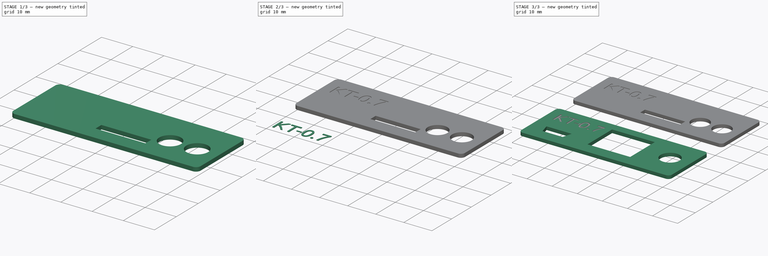
[diagram: build sequence overview — one tinted view per stage of 3, left to right]
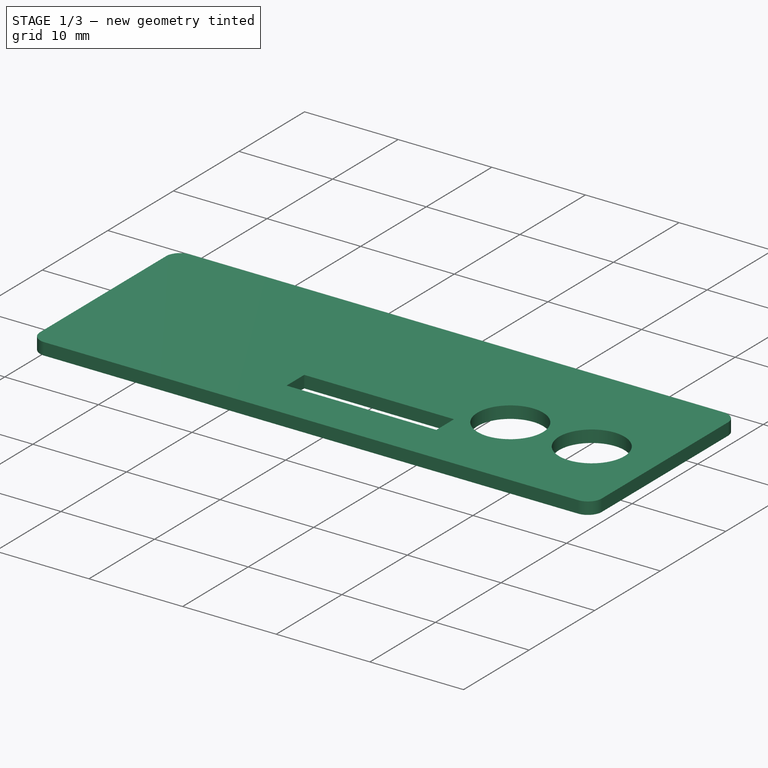
[diagram: stage 1 of 3 — iso view after this stage's code; geometry added in this stage tinted green]
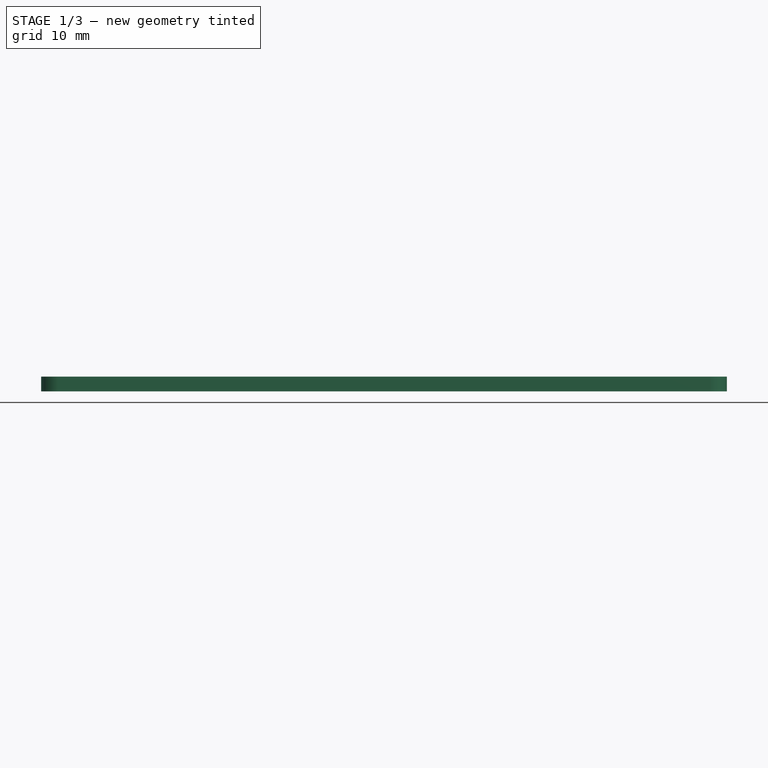
[diagram: stage 1 of 3 — front view after this stage's code; geometry added in this stage tinted green]
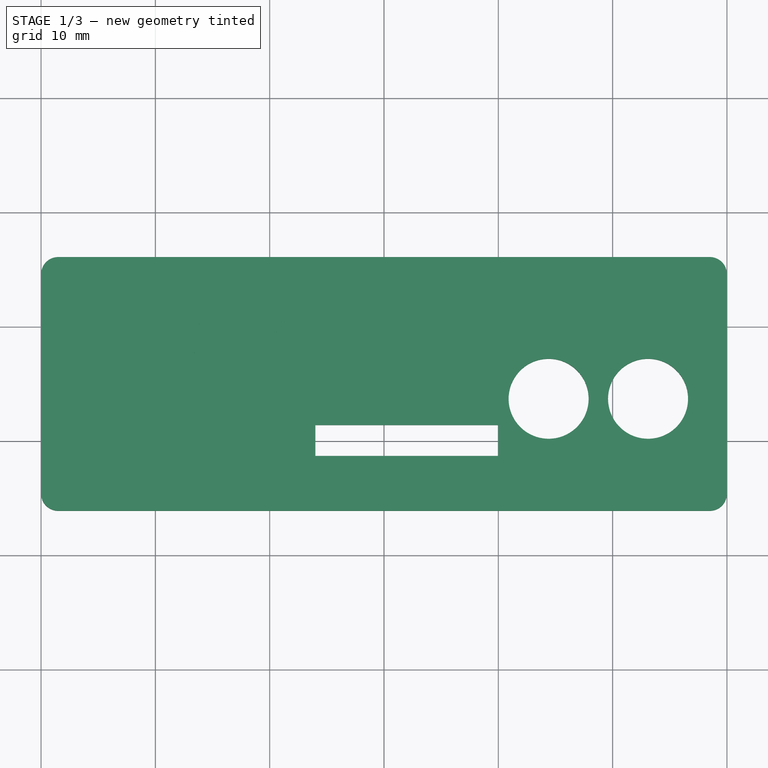
[diagram: stage 1 of 3 — top view after this stage's code; geometry added in this stage tinted green]
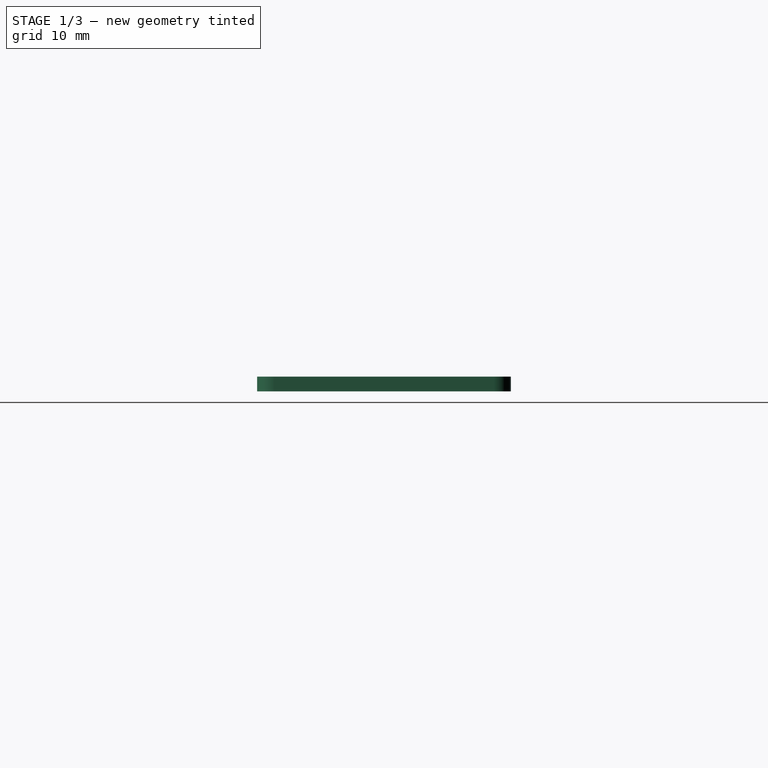
[diagram: stage 1 of 3 — right view after this stage's code; geometry added in this stage tinted green]
FCSTD DOCUMENT  (FreeCAD 0.16R)
Label: sideplates-0.7
License: CreativeCommons Attribution-ShareAlike
LicenseURL: http://creativecommons.org/licenses/by-sa/4.0/
objects: Sketcher::SketchObject×2, PartDesign::Pad×2, Part::Part2DObjectPython×2, Part::Extrusion×2, Part::Cut×2
note: 12 computed .brp shape members not serialized (recipe doc carries the construction recipe); baked Part::Feature solids carry a one-line shape summary decoded from their .brp

FEATURE [Sketcher::SketchObject] Sketch  label="Front Plate"
  Placement = pos=(0,15,0) rot=(0,1,0;3.14159rad)
  sketch-geometry (15):
    g0: LineSegment StartX=-28.5 StartY=11.1 StartZ=0 EndX=28.5 EndY=11.1 EndZ=0
    g1: LineSegment StartX=30 StartY=9.6 StartZ=0 EndX=30 EndY=-9.6 EndZ=0
    g2: LineSegment StartX=28.5 StartY=-11.1 StartZ=0 EndX=-28.5 EndY=-11.1 EndZ=0
    g3: LineSegment StartX=-30 StartY=-9.6 StartZ=0 EndX=-30 EndY=9.6 EndZ=0
    g4: ArcOfCircle CenterX=-28.5 CenterY=9.6 CenterZ=0 NormalX=0 NormalY=0 NormalZ=1 Radius=1.5 StartAngle=1.5708 EndAngle=3.14159
    g5: ArcOfCircle CenterX=28.5 CenterY=9.6 CenterZ=0 NormalX=0 NormalY=0 NormalZ=1 Radius=1.5 StartAngle=0 EndAngle=1.5708
    g6: ArcOfCircle CenterX=28.5 CenterY=-9.6 CenterZ=0 NormalX=0 NormalY=0 NormalZ=1 Radius=1.5 StartAngle=4.71239 EndAngle=6.28319
    g7: ArcOfCircle CenterX=-28.5 CenterY=-9.6 CenterZ=0 NormalX=0 NormalY=0 NormalZ=1 Radius=1.5 StartAngle=3.14159 EndAngle=4.71239
    g8: LineSegment StartX=-10 StartY=-6.3 StartZ=0 EndX=6 EndY=-6.3 EndZ=0
    g9: LineSegment StartX=6 StartY=-6.3 StartZ=0 EndX=6 EndY=-3.6 EndZ=0
    g10: LineSegment StartX=6 StartY=-3.6 StartZ=0 EndX=-10 EndY=-3.6 EndZ=0
    g11: LineSegment StartX=-10 StartY=-3.6 StartZ=0 EndX=-10 EndY=-6.3 EndZ=0
    g12: Circle CenterX=-23.1 CenterY=-1.3 CenterZ=0 NormalX=0 NormalY=0 NormalZ=1 Radius=3.5
    g13: Circle CenterX=-14.4 CenterY=-1.3 CenterZ=0 NormalX=0 NormalY=0 NormalZ=1 Radius=3.5
    g14: LineSegment [constr] StartX=-23.1 StartY=-1.3 StartZ=0 EndX=-14.4 EndY=-1.3 EndZ=0
  constraints (39):
    c: Horizontal(g0)
    c: Horizontal(g2)
    c: Vertical(g1)
    c: Vertical(g3)
    c: Tangent(g0,g4) = 1.5708
    c: Tangent(g3,g4) = 1.5708
    c: Tangent(g0,g5) = 1.5708
    c: Tangent(g1,g5) = 1.5708
    c: Tangent(g1,g6) = 1.5708
    c: Tangent(g2,g6) = 1.5708
    c: Tangent(g2,g7) = 1.5708
    c: Tangent(g3,g7) = 1.5708
    c: Equal(g4,g7)
    c: Equal(g7,g6)
    c: DistanceX(g3,g1) = 60
    c: DistanceY(g2,g0) = 22.2
    c: DistanceY(g3,g0) = 1.5
    c: Symmetric(g3,g1,g-2)
    c: Symmetric(g6,g5,g-1)
    c: Coincident(g8,g9)
    c: Coincident(g9,g10)
    c: Coincident(g10,g11)
    c: Coincident(g11,g8)
    c: Horizontal(g8)
    c: Horizontal(g10)
    c: Vertical(g9)
    c: Vertical(g11)
    c: DistanceY(g9,g9) = 2.7  'SD Slot Heigth'
    c: DistanceX(g10,g10) = 16
    c: Radius(g13) = 3.5  'Led Hole'
    c: Equal(g12,g13)  'Led Holes'
    c: DistanceX(g3,g12) = 6.9
    c: DistanceX(g12,g13) = 8.7
    c: DistanceX(g8,g1) = 24
    c: Coincident(g14,g12)
    c: Coincident(g14,g13)
    c: Horizontal(g14)
    c: DistanceY(g2,g8) = 4.8
    c: DistanceY(g8,g13) = 5
FEATURE [Sketcher::SketchObject] Sketch001  label="Back Plate"
  Placement = pos=(0,-15,0) rot=(0,1,0;3.14159rad)
  sketch-geometry (19):
    g0: LineSegment StartX=-28.5 StartY=11.1 StartZ=0 EndX=28.5 EndY=11.1 EndZ=0
    g1: LineSegment StartX=30 StartY=9.6 StartZ=0 EndX=30 EndY=-9.6 EndZ=0
    g2: LineSegment StartX=28.5 StartY=-11.1 StartZ=0 EndX=-28.5 EndY=-11.1 EndZ=0
    g3: LineSegment StartX=-30 StartY=-9.6 StartZ=0 EndX=-30 EndY=9.6 EndZ=0
    g4: ArcOfCircle CenterX=-28.5 CenterY=9.6 CenterZ=0 NormalX=0 NormalY=0 NormalZ=1 Radius=1.5 StartAngle=1.5708 EndAngle=3.14159
    g5: ArcOfCircle CenterX=28.5 CenterY=9.6 CenterZ=0 NormalX=0 NormalY=0 NormalZ=1 Radius=1.5 StartAngle=0 EndAngle=1.5708
    g6: ArcOfCircle CenterX=28.5 CenterY=-9.6 CenterZ=0 NormalX=0 NormalY=0 NormalZ=1 Radius=1.5 StartAngle=4.71239 EndAngle=6.28319
    g7: ArcOfCircle CenterX=-28.5 CenterY=-9.6 CenterZ=0 NormalX=0 NormalY=0 NormalZ=1 Radius=1.5 StartAngle=3.14159 EndAngle=4.71239
    g8: LineSegment StartX=-11 StartY=7.7 StartZ=0 EndX=6 EndY=7.7 EndZ=0
    g9: LineSegment StartX=6 StartY=7.7 StartZ=0 EndX=6 EndY=-6.3 EndZ=0
    g10: LineSegment StartX=6 StartY=-6.3 StartZ=0 EndX=-11 EndY=-6.3 EndZ=0
    g11: LineSegment StartX=-11 StartY=-6.3 StartZ=0 EndX=-11 EndY=7.7 EndZ=0
    g12: LineSegment StartX=14.9 StartY=-2.6 StartZ=0 EndX=24.9 EndY=-2.6 EndZ=0
    g13: LineSegment StartX=24.9 StartY=-2.6 StartZ=0 EndX=23.9 EndY=-6.3 EndZ=0
    g14: LineSegment StartX=23.9 StartY=-6.3 StartZ=0 EndX=15.9 EndY=-6.3 EndZ=0
    g15: Circle CenterX=-22 CenterY=0.7 CenterZ=0 NormalX=0 NormalY=0 NormalZ=1 Radius=3.8
    g16: LineSegment [constr] StartX=15.9 StartY=-6.3 StartZ=0 EndX=6 EndY=-6.3 EndZ=0
    g17: LineSegment StartX=14.9 StartY=-2.6 StartZ=0 EndX=15.9 EndY=-6.3 EndZ=0
    g18: LineSegment [constr] StartX=19.9 StartY=-2.6 StartZ=0 EndX=19.9 EndY=-6.3 EndZ=0
  constraints (51):
    c: Horizontal(g0)
    c: Horizontal(g2)
    c: Vertical(g1)
    c: Vertical(g3)
    c: Tangent(g0,g4) = 1.5708
    c: Tangent(g3,g4) = 1.5708
    c: Tangent(g0,g5) = 1.5708
    c: Tangent(g1,g5) = 1.5708
    c: Tangent(g1,g6) = 1.5708
    c: Tangent(g2,g6) = 1.5708
    c: Tangent(g2,g7) = 1.5708
    c: Tangent(g3,g7) = 1.5708
    c: Equal(g4,g7)
    c: Equal(g7,g6)
    c: DistanceX(g3,g1) = 60
    c: DistanceY(g2,g0) = 22.2
    c: DistanceY(g3,g0) = 1.5
    c: Symmetric(g3,g1,g-2)
    c: Symmetric(g6,g5,g-1)
    c: Coincident(g8,g9)
    c: Coincident(g9,g10)
    c: Coincident(g10,g11)
    c: Coincident(g11,g8)
    c: Horizontal(g8)
    c: Horizontal(g10)
    c: Vertical(g9)
    c: Vertical(g11)
    c: Coincident(g12,g13)
    c: Coincident(g13,g14)
    c: Horizontal(g12)
    c: Horizontal(g14)
    c: DistanceX(g8,g8) = 17
    c: DistanceY(g11,g11) = 14
    c: DistanceX(g12,g12) = 10
    c: DistanceY(g13,g13) = 3.7
    c: Coincident(g15,g9)
    c: Coincident(g16,g14)
    c: Coincident(g16,g9)
    c: Horizontal(g16)
    c: DistanceY(g2,g10) = 4.8
    c: DistanceX(g3,g15) = 8
    c: DistanceY(g10,g15) = 7
    c: Radius(g15) = 3.8
    c: DistanceX(g8,g1) = 24
    c: Coincident(g17,g12)
    c: Coincident(g17,g14)
    c: DistanceX(g14,g14) = 8
    c: Vertical(g18)
    c: Symmetric(g14,g14,g18)
    c: Symmetric(g12,g12,g18)
    c: DistanceX(g18,g1) = 10.1
FEATURE [PartDesign::Pad] Pad  label="Front Plate 3d"
  Length = 1.3
  Length2 = 100
  Placement = pos=(0,15,0) rot=(0,1,0;3.14159rad)
  Sketch = -> Sketch
  Type = 0
FEATURE [Part::Part2DObjectPython] ShapeString  label="Version-Front"  # Draft 2D object (typed FeaturePython)
  FontFile = <path>
  Placement = pos=(-27,17,0) rot=(0,0,1;0rad)
  Size = 2.5
  String = KT-0.7
  Tracking = 0
FEATURE [Part::Part2DObjectPython] ShapeString001  label="Version-Back"  # Draft 2D object (typed FeaturePython)
  FontFile = <path>
  Placement = pos=(-27,-12,0) rot=(0,0,1;0rad)
  Size = 2.5
  String = KT-0.7
  Tracking = 0
FEATURE [Part::Extrusion] Extrude001  label="Extrude Version Front"
  Base = -> ShapeString
  Dir = (0,0,-0.2)
  Solid = false
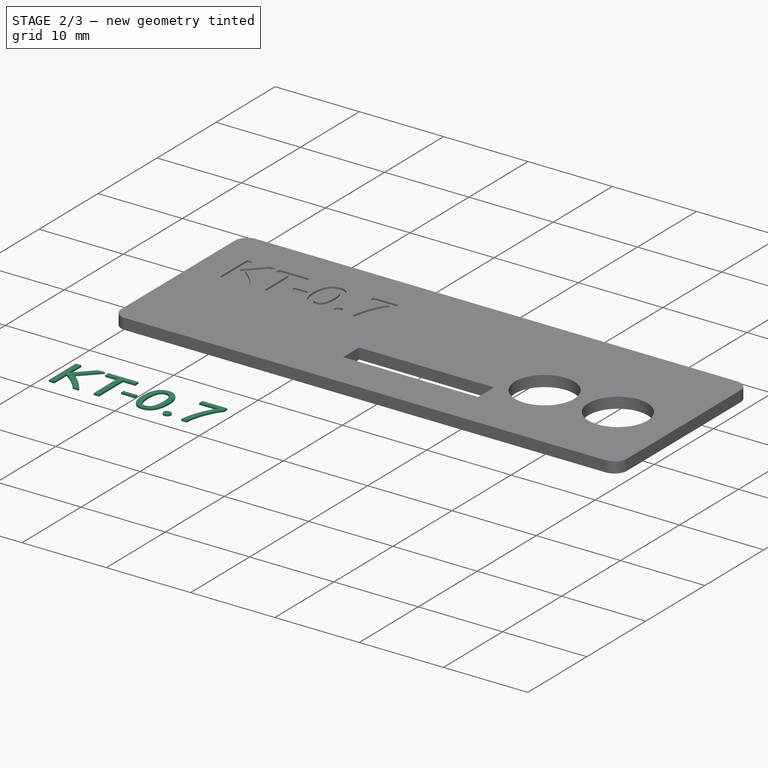
[diagram: stage 2 of 3 — iso view after this stage's code; geometry added in this stage tinted green]
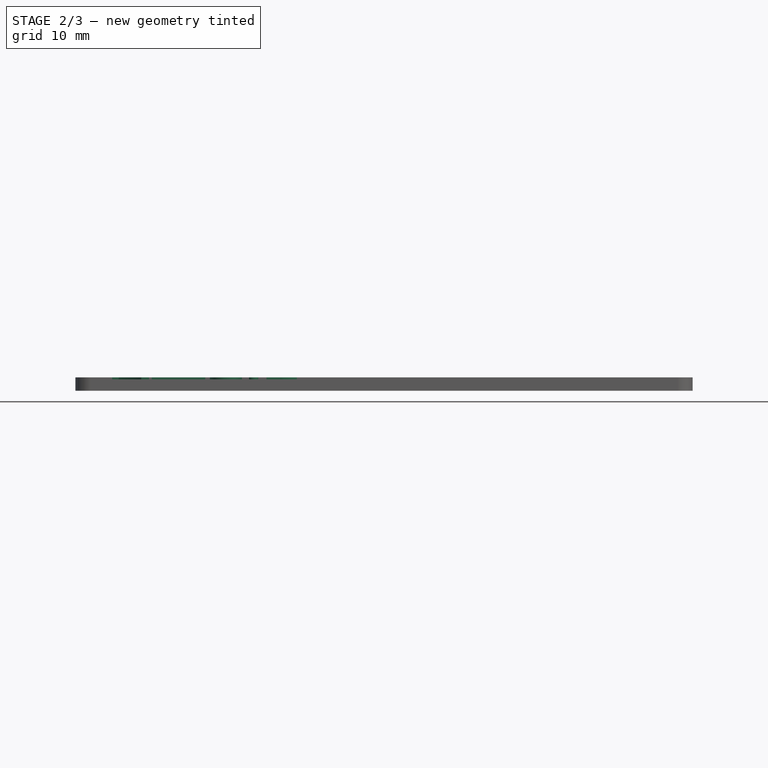
[diagram: stage 2 of 3 — front view after this stage's code; geometry added in this stage tinted green]
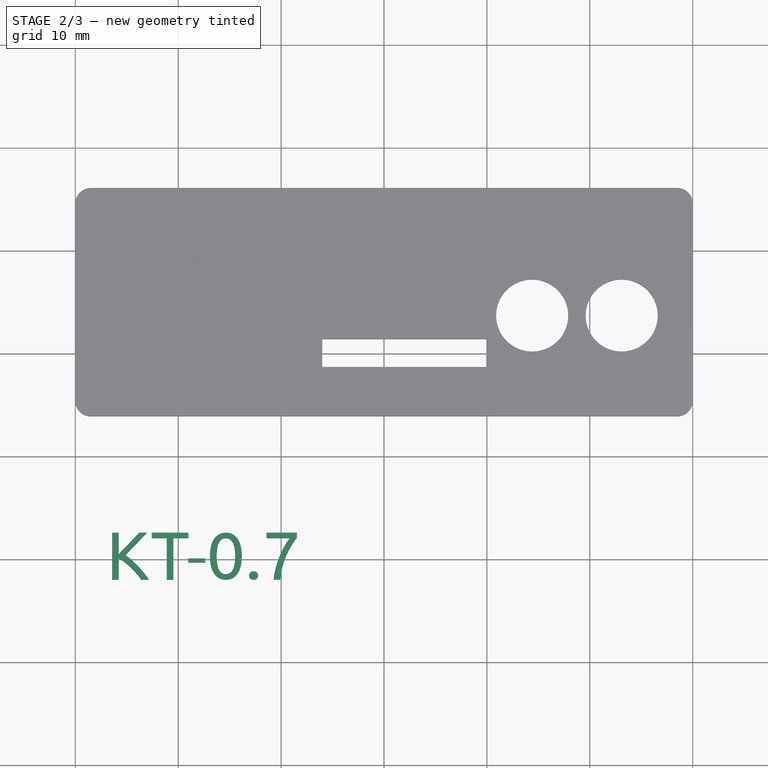
[diagram: stage 2 of 3 — top view after this stage's code; geometry added in this stage tinted green]
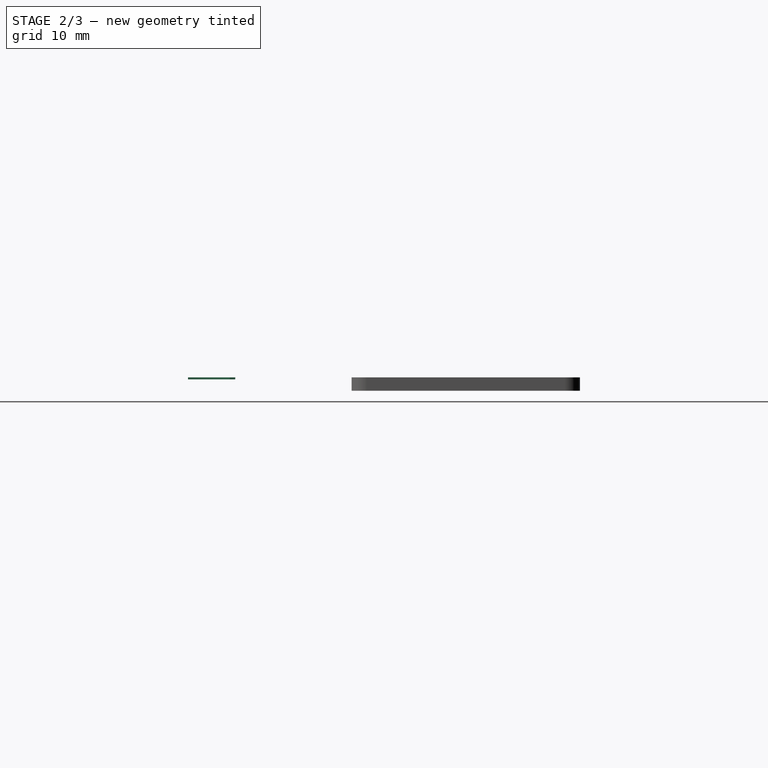
[diagram: stage 2 of 3 — right view after this stage's code; geometry added in this stage tinted green]
FEATURE [Part::Extrusion] Extrude002  label="Extrude Version Back"
  Base = -> ShapeString001
  Dir = (0,0,-0.2)
  Solid = false
FEATURE [Part::Cut] Cut001  label="Cut Front"
  Base = -> Pad
  Tool = -> Extrude001
note: 2 file-system paths scrubbed to <path> (originals preserved in the JSON sidecar)
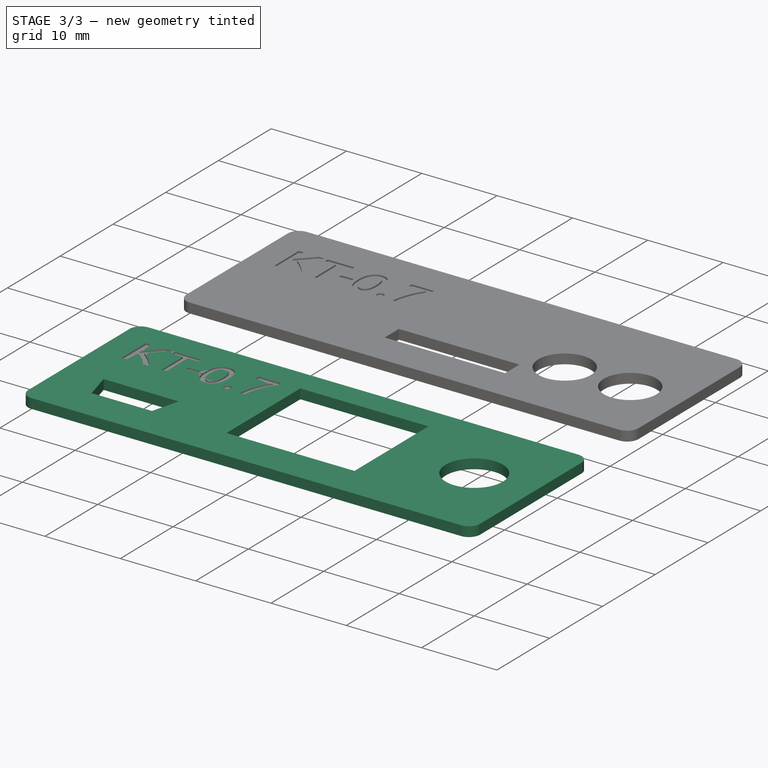
[diagram: stage 3 of 3 — iso view after this stage's code; geometry added in this stage tinted green]
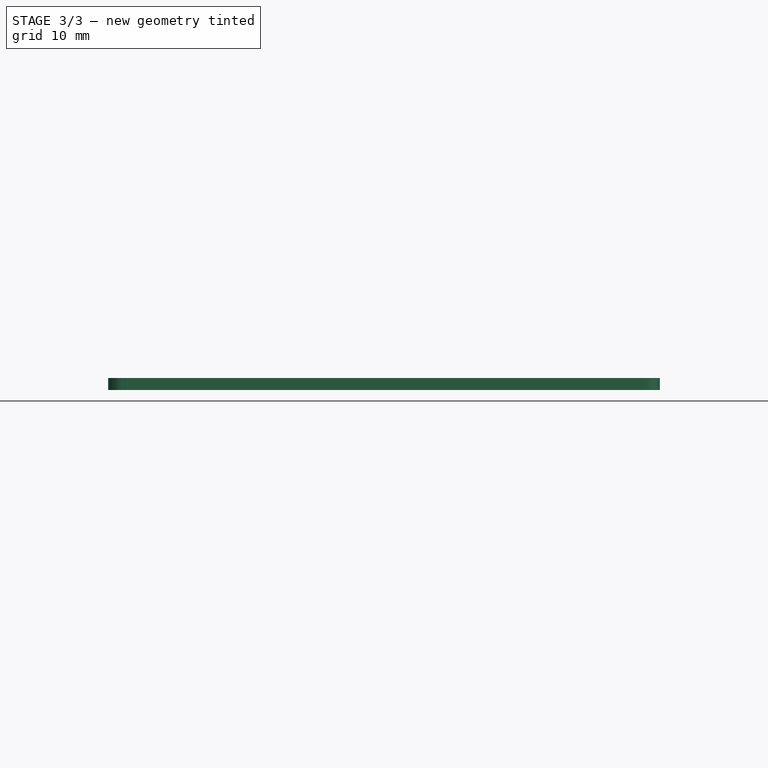
[diagram: stage 3 of 3 — front view after this stage's code; geometry added in this stage tinted green]
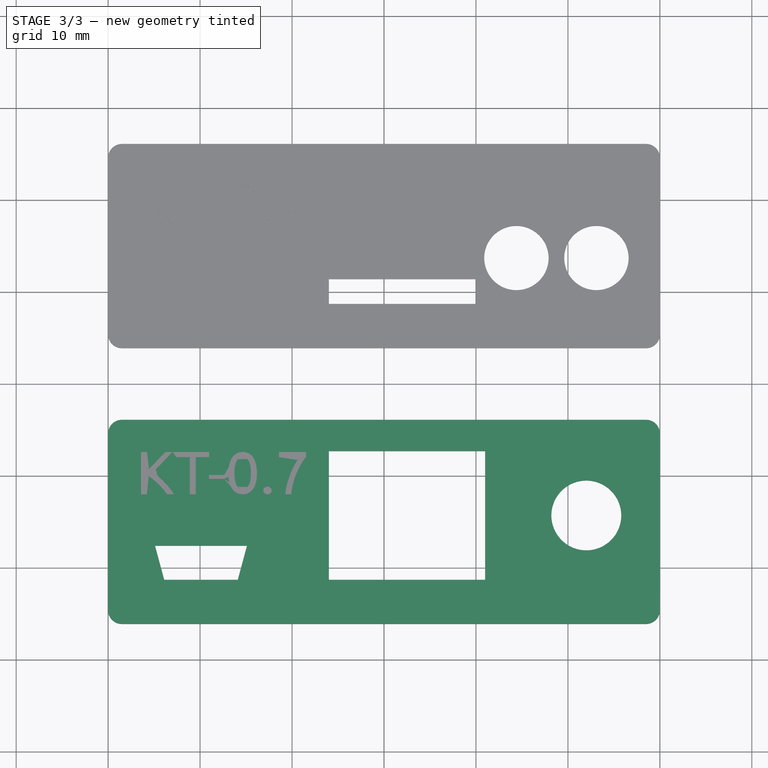
[diagram: stage 3 of 3 — top view after this stage's code; geometry added in this stage tinted green]
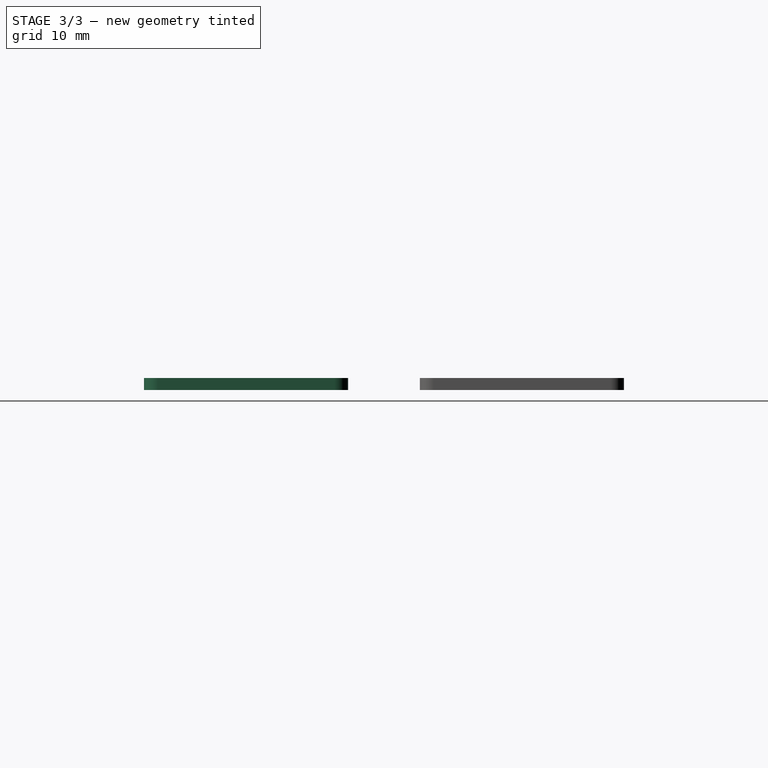
[diagram: stage 3 of 3 — right view after this stage's code; geometry added in this stage tinted green]
FEATURE [PartDesign::Pad] Pad001  label="Back Plate 3d"
  Length = 1.3
  Length2 = 100
  Placement = pos=(0,-15,0) rot=(0,1,0;3.14159rad)
  Sketch = -> Sketch001
  Type = 0
FEATURE [Part::Cut] Cut  label="Cut Back"
  Base = -> Pad001
  Tool = -> Extrude002
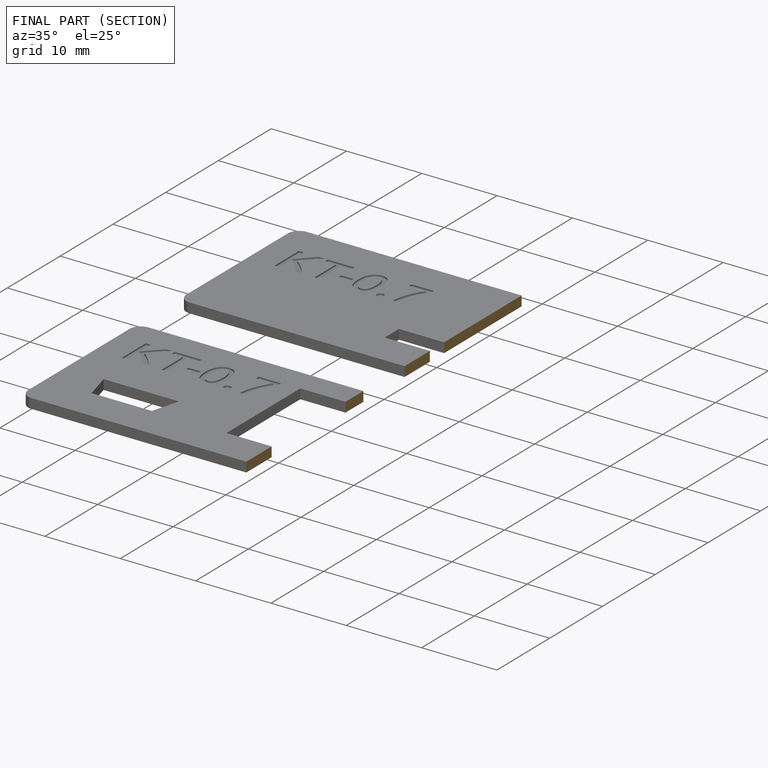
[diagram: finished part — half-section view (interior)]
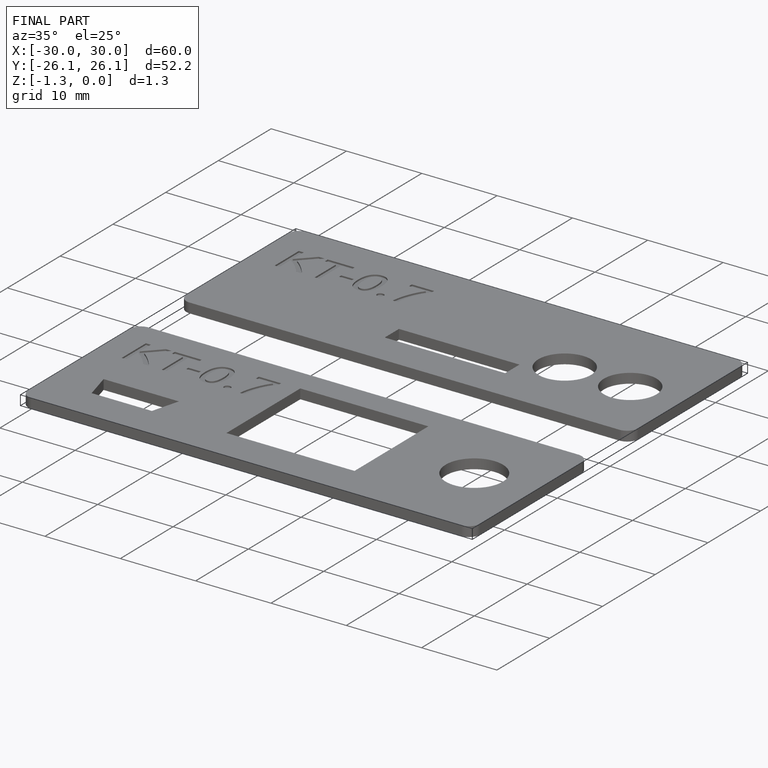
[diagram: finished part — iso view with bounding-box wireframe]
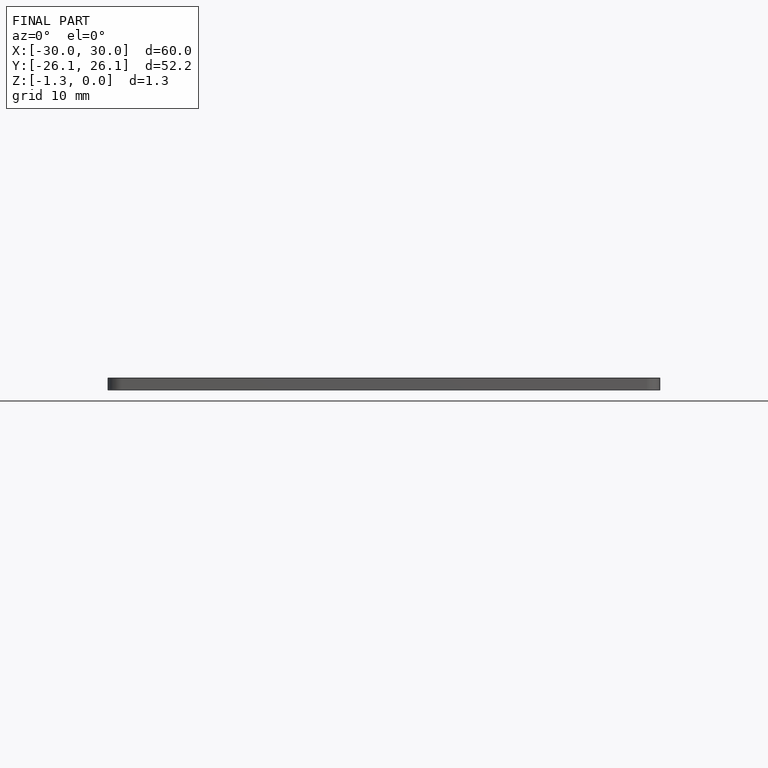
[diagram: finished part — front view with bounding-box wireframe]
